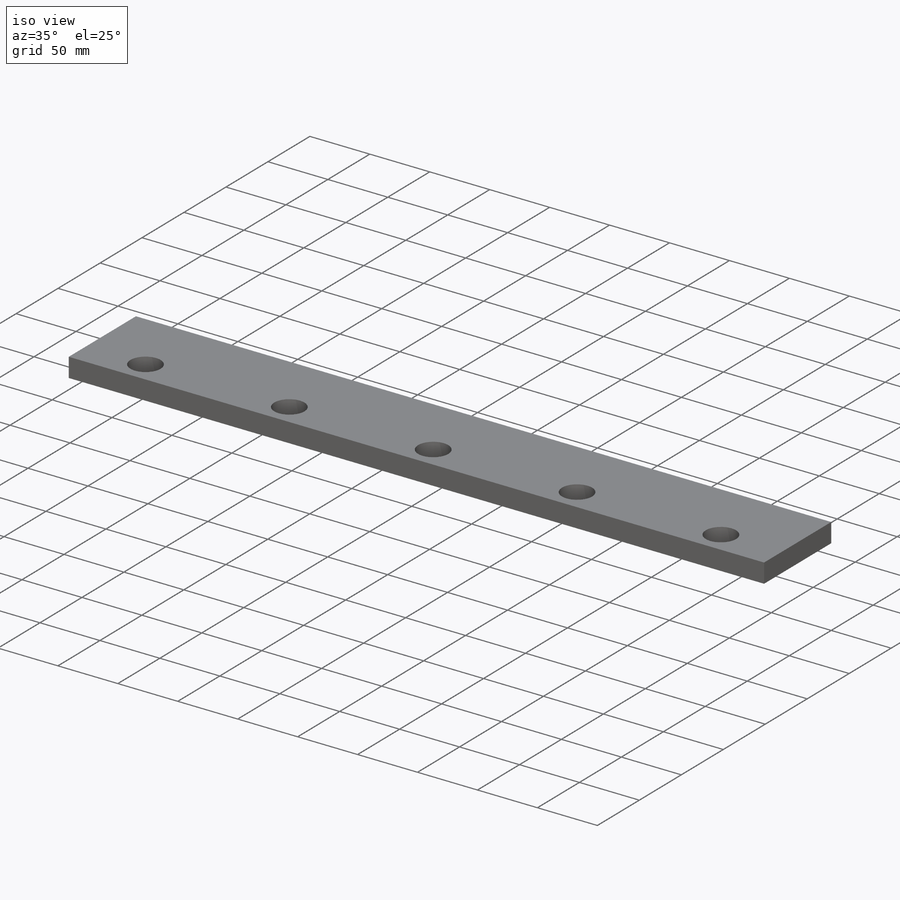
[diagram: iso view]
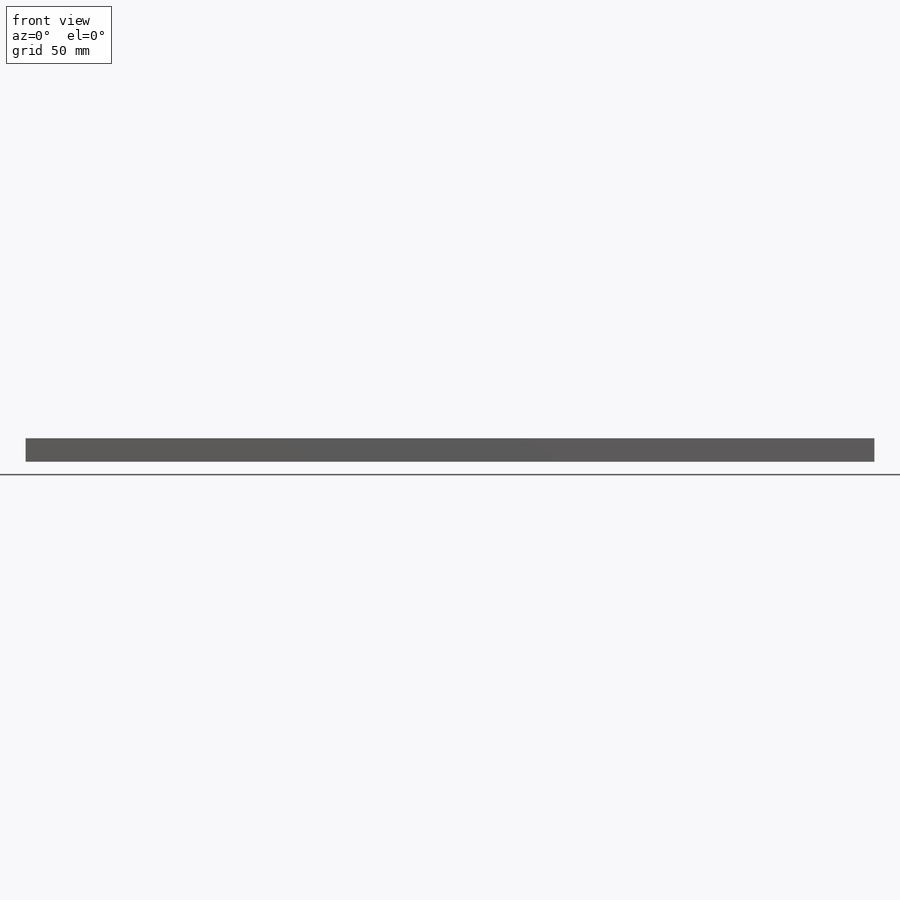
[diagram: front view]
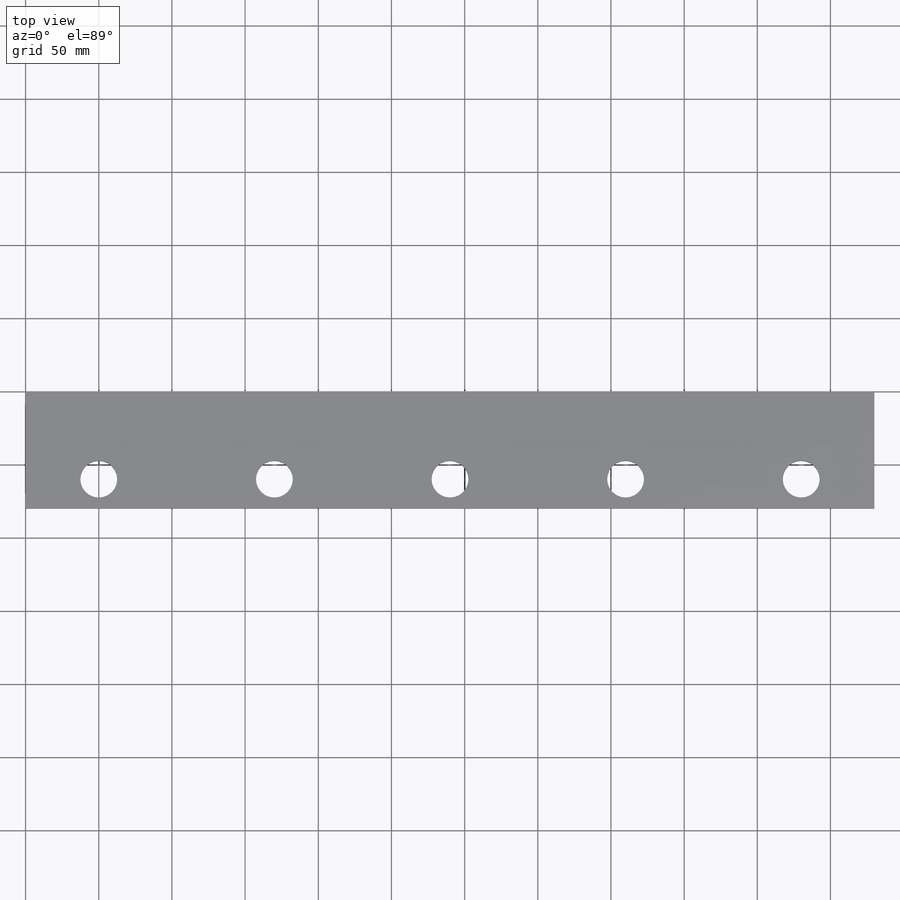
[diagram: top view]
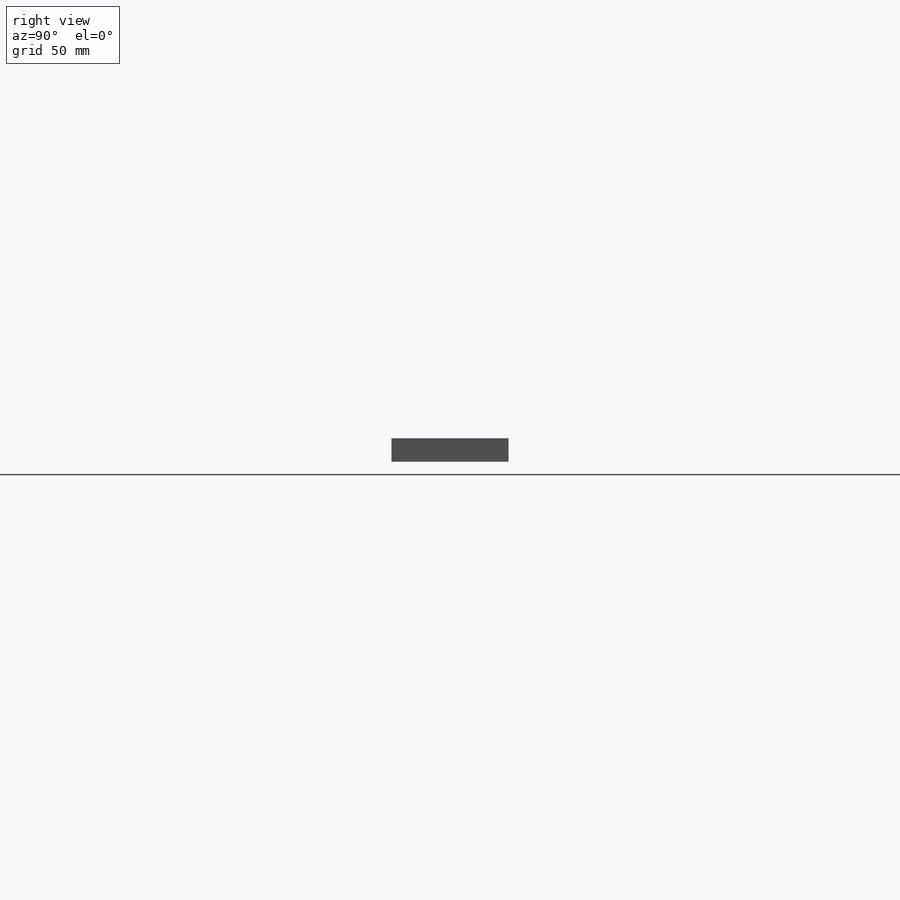
[diagram: right view]
SOLIDWORKS PART (.sldprt)
format: sldprt  version: not decoded by parser v0  size: 120,320 bytes
history: native  units: mm
features: sketch x2, material x1, extrude x1, cut_extrude x1, pattern_linear x1 (+12 scaffold rows collapsed)
feature tree (18):
  scaffold x12  (default folders/planes/origin — collapsed)
  material  "Material <not specified>"
  sketch  "Sketch1"  dims[D1=80.0mm D2=580.0mm]
  extrude  "Boss-Extrude1"  Depth=16mm
  sketch  "Sketch2"  dims[D1=25.2mm]
  cut_extrude  "Cut-Extrude4"  Depth=18mm
  pattern_linear  "LPattern1"  Count1=5 Count2=1 Spacing1=120mm Spacing2=120mm
decode coverage: 5 of 5 modeling features carry decoded parameters
note: suppression state not decoded; provenance and decode notes live in map.json
